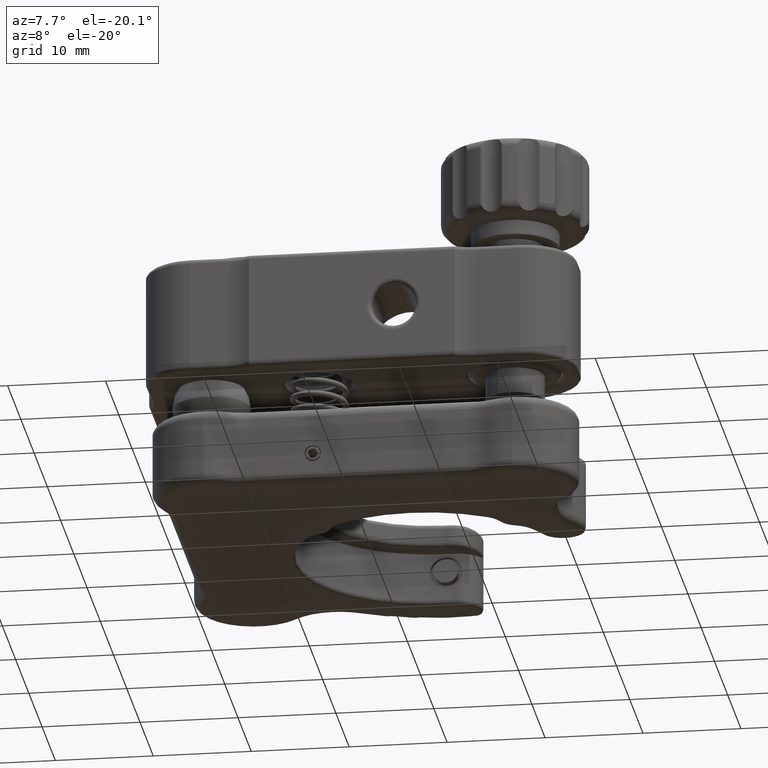
[diagram: clean part render]
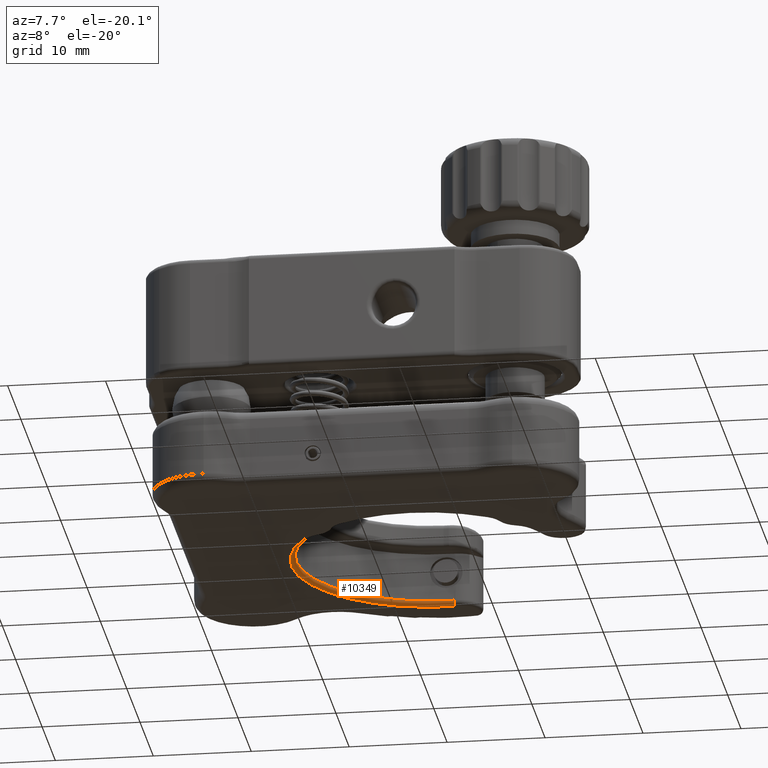
[diagram: same view with one face highlighted and labeled with its STEP entity id]
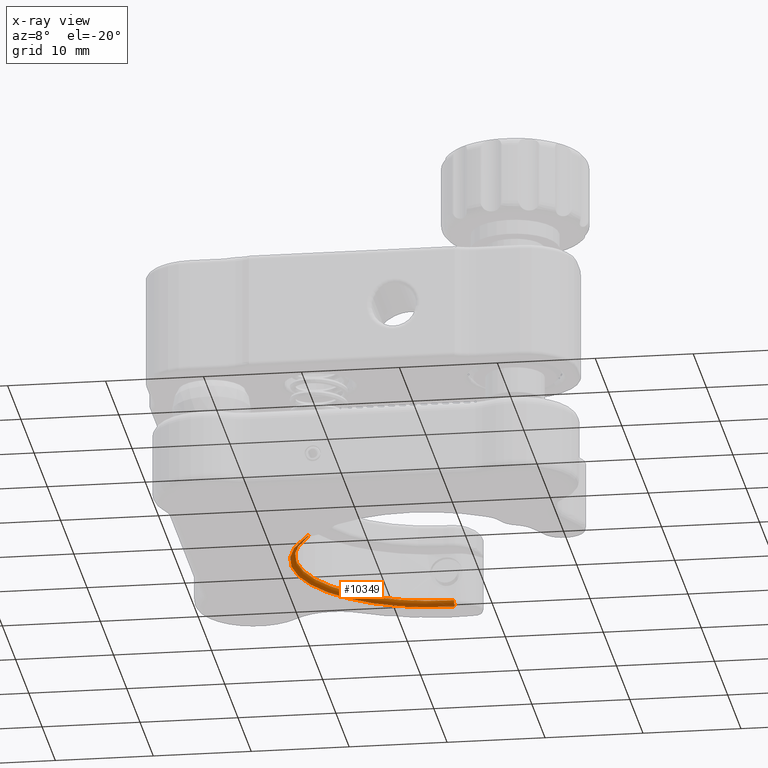
[diagram: x-ray of the same camera — body ghosted, the highlighted face saturated]
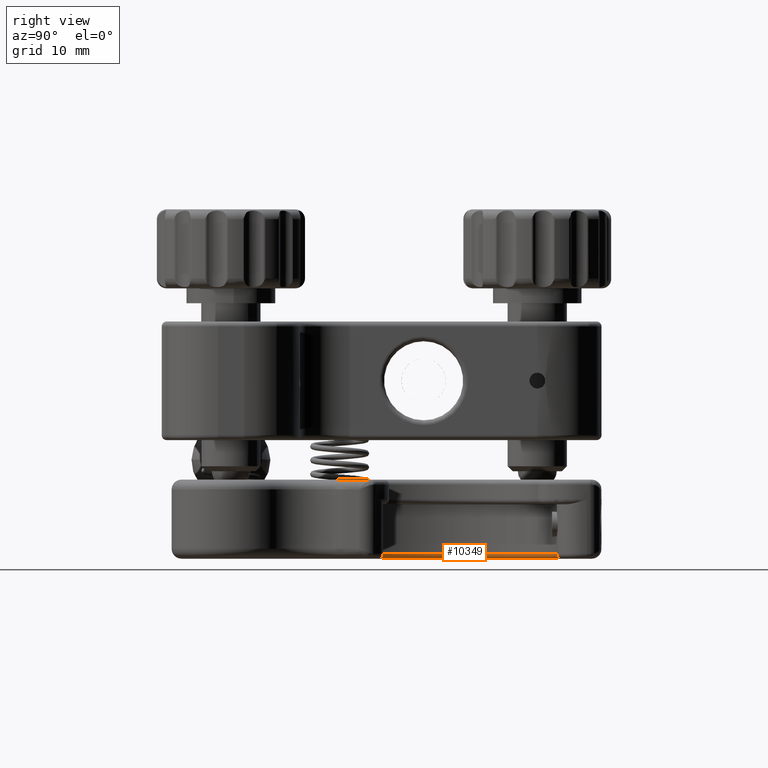
[diagram: same view with one face highlighted and labeled with its STEP entity id]
A machine part, auxiliary view. The second image highlights one B-rep face of the part: STEP entity #10349.
The next image is the same camera in x-ray: the body ghosted, the highlighted face saturated — about 0% of this face is hidden behind the body in this view.
A second angle (right view) of the same face is appended — the face is thin or edge-on in the first view.
In plain terms, the highlighted toroidal blend (fillet) surface has major radius 14 mm and minor (blend) radius 0.5 mm.
Its self-contained STEP definition (entity closure, byte-faithful):
#1091 = DIRECTION ( 'NONE',  ( 0.000000000000000000, -1.000000000000000000, 0.000000000000000000 ) ) ;
#1117 = EDGE_CURVE ( 'NONE', #12788, #21485, #18829, .T. ) ;
#1204 = DIRECTION ( 'NONE',  ( 1.665334536937734811E-16, 6.342465669864681941E-17, 1.000000000000000000 ) ) ;
#3787 = EDGE_CURVE ( 'NONE', #12788, #21140, #18579, .T. ) ;
#3851 = ORIENTED_EDGE ( 'NONE', *, *, #3787, .T. ) ;
#4341 = AXIS2_PLACEMENT_3D ( 'NONE', #9897, #16656, #13633 ) ;
#4854 = CARTESIAN_POINT ( 'NONE',  ( -35.08220024130413606, 19.49999999999995026, -17.50000000000000355 ) ) ;
#5095 = AXIS2_PLACEMENT_3D ( 'NONE', #4854, #12030, #22125 ) ;
#5424 = ORIENTED_EDGE ( 'NONE', *, *, #10722, .F. ) ;
#5484 = CIRCLE ( 'NONE', #21301, 13.50000000000000000 ) ;
#6839 = AXIS2_PLACEMENT_3D ( 'NONE', #22292, #20372, #22419 ) ;
#8067 = VERTEX_POINT ( 'NONE', #14060 ) ;
#8142 = FACE_OUTER_BOUND ( 'NONE', #9015, .T. ) ;
#8623 = CARTESIAN_POINT ( 'NONE',  ( -34.25983658300319235, 33.47582620146320664, -18.00000000000000711 ) ) ;
#9015 = EDGE_LOOP ( 'NONE', ( #3851, #5424, #9674, #20595 ) ) ;
#9674 = ORIENTED_EDGE ( 'NONE', *, *, #18810, .F. ) ;
#9897 = CARTESIAN_POINT ( 'NONE',  ( -46.75562080165077106, 11.77140035832643861, -17.50000000000000000 ) ) ;
#10349 = ADVANCED_FACE ( 'NONE', ( #8142 ), #21286, .T. ) ;
#10722 = EDGE_CURVE ( 'NONE', #8067, #21140, #5484, .T. ) ;
#11435 = CARTESIAN_POINT ( 'NONE',  ( -46.75562080165077106, 11.77140035832643861, -18.00000000000000355 ) ) ;
#12030 = DIRECTION ( 'NONE',  ( -1.665334536937734811E-16, -6.342465669864681941E-17, -1.000000000000000000 ) ) ;
#12788 = VERTEX_POINT ( 'NONE', #8623 ) ;
#13000 = DIRECTION ( 'NONE',  ( -1.665334536937734811E-16, -6.342465669864681941E-17, -1.000000000000000000 ) ) ;
#13121 = DIRECTION ( 'NONE',  ( 0.000000000000000000, -1.000000000000000000, 0.000000000000000000 ) ) ;
#13633 = DIRECTION ( 'NONE',  ( 0.8338157543104748326, 0.5520428315481094028, 0.000000000000000000 ) ) ;
#14060 = CARTESIAN_POINT ( 'NONE',  ( -46.33871292449553181, 12.04742177410049386, -17.50000000000000000 ) ) ;
#15692 = CARTESIAN_POINT ( 'NONE',  ( -34.28920671365680306, 32.97668955141094926, -17.50000000000000711 ) ) ;
#16656 = DIRECTION ( 'NONE',  ( 0.5520428315481092918, -0.8338157543104748326, -3.904912135753113271E-17 ) ) ;
#18336 = CIRCLE ( 'NONE', #4341, 0.5000000000000012212 ) ;
#18579 = CIRCLE ( 'NONE', #6839, 0.5000000000000014433 ) ;
#18810 = EDGE_CURVE ( 'NONE', #21485, #8067, #18336, .T. ) ;
#18829 = CIRCLE ( 'NONE', #22115, 14.00000000000000000 ) ;
#19938 = CARTESIAN_POINT ( 'NONE',  ( -35.08220024130413606, 19.49999999999995026, -18.00000000000000711 ) ) ;
#20245 = CARTESIAN_POINT ( 'NONE',  ( -35.08220024130413606, 19.49999999999995026, -17.50000000000000355 ) ) ;
#20372 = DIRECTION ( 'NONE',  ( -0.9982733001045156485, 0.05874026130721345801, 1.625203194888869543E-16 ) ) ;
#20595 = ORIENTED_EDGE ( 'NONE', *, *, #1117, .F. ) ;
#21140 = VERTEX_POINT ( 'NONE', #15692 ) ;
#21286 = TOROIDAL_SURFACE ( 'NONE', #5095, 14.00000000000000000, 0.5000000000000000000 ) ;
#21301 = AXIS2_PLACEMENT_3D ( 'NONE', #20245, #13000, #13121 ) ;
#21485 = VERTEX_POINT ( 'NONE', #11435 ) ;
#22115 = AXIS2_PLACEMENT_3D ( 'NONE', #19938, #1204, #1091 ) ;
#22125 = DIRECTION ( 'NONE',  ( 1.056232712936758013E-32, -1.000000000000000000, 6.342465669864681941E-17 ) ) ;
#22292 = CARTESIAN_POINT ( 'NONE',  ( -34.25983658300319235, 33.47582620146319954, -17.50000000000000355 ) ) ;
#22419 = DIRECTION ( 'NONE',  ( -0.05874026130721338168, -0.9982733001045156485, 0.000000000000000000 ) ) ;